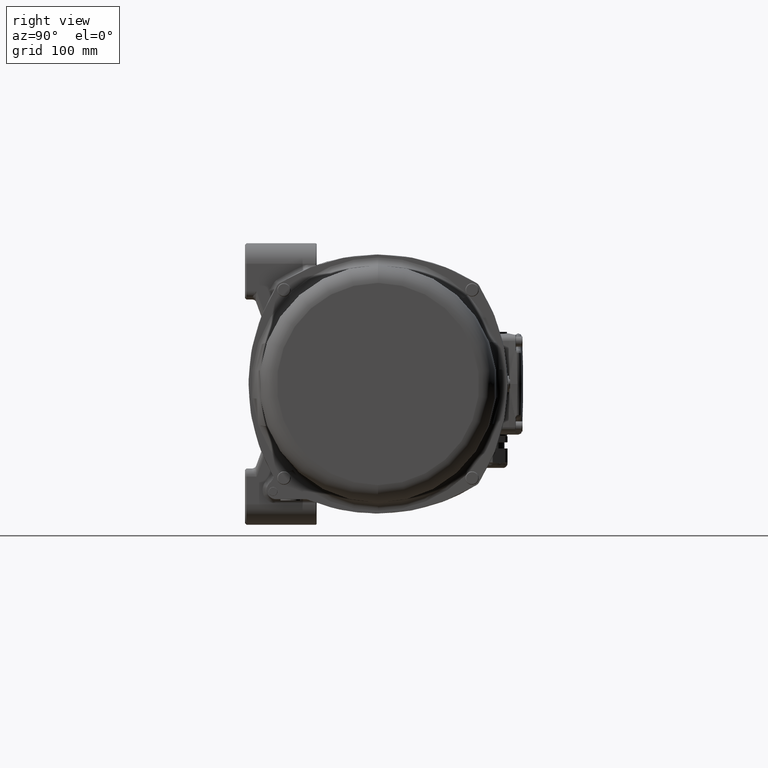
[diagram: clean part render]
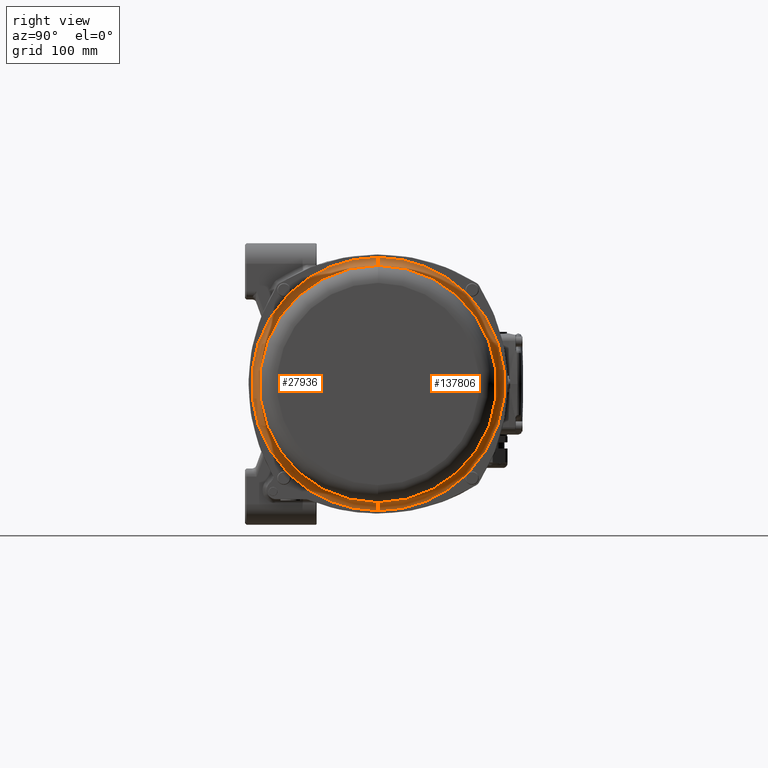
[diagram: same view with one multi-face feature highlighted, each face labeled with its STEP entity id]
A machine part, right view. The highlighted faces form ONE feature: a constant-radius fillet chain: 2 tangent blend faces with common blend radius 7.8 mm. The faces share edges in the B-rep.
Their STEP definitions:
[1] entity #27936 (Torus):
#785 = VERTEX_POINT ( 'NONE', #114153 ) ;
#1464 = CARTESIAN_POINT ( 'NONE',  ( 132.7040165105378500, -87.12431305550543900, 87.53068186414535000 ) ) ;
#7138 = CARTESIAN_POINT ( 'NONE',  ( 140.5000000000000000, 0.0000000000000000000, 123.7500000000000000 ) ) ;
#7971 = CARTESIAN_POINT ( 'NONE',  ( 132.7000000000000200, 0.0000000000000000000, 0.0000000000000000000 ) ) ;
#8385 = ORIENTED_EDGE ( 'NONE', *, *, #23820, .F. ) ;
#10545 = DIRECTION ( 'NONE',  ( 0.0000000000000000000, 0.0000000000000000000, 1.000000000000000000 ) ) ;
#11874 = CARTESIAN_POINT ( 'NONE',  ( 132.7000000000058200, -88.21192260523113800, 86.55527465691490400 ) ) ;
#13443 = CARTESIAN_POINT ( 'NONE',  ( 132.7000000000000200, -86.26410856214300800, -88.72748206697619400 ) ) ;
#14128 = EDGE_CURVE ( 'NONE', #119347, #125788, #133150, .T. ) ;
#16086 = CARTESIAN_POINT ( 'NONE',  ( 140.5000000000000000, 0.0000000000000000000, 115.9500000000000000 ) ) ;
#16488 = CARTESIAN_POINT ( 'NONE',  ( 132.7000000000000200, -86.26410856228450500, 88.72748206672559900 ) ) ;
#17228 = DIRECTION ( 'NONE',  ( 0.0000000000000000000, -1.224646799147352000E-016, 1.000000000000000000 ) ) ;
#17577 = EDGE_CURVE ( 'NONE', #785, #76790, #27568, .T. ) ;
#19471 = VERTEX_POINT ( 'NONE', #32546 ) ;
#20064 = CARTESIAN_POINT ( 'NONE',  ( 132.7000000000000200, 0.0000000000000000000, 0.0000000000000000000 ) ) ;
#23820 = EDGE_CURVE ( 'NONE', #62845, #19471, #139321, .T. ) ;
#24139 = AXIS2_PLACEMENT_3D ( 'NONE', #119004, #39434, #85669 ) ;
#24769 = CARTESIAN_POINT ( 'NONE',  ( 132.7012508799872400, -86.57178570248258600, 88.22362580652605900 ) ) ;
#27568 = CIRCLE ( 'NONE', #125929, 7.800000000000001600 ) ;
#27936 = ADVANCED_FACE ( 'NONE', ( #44255 ), #133332, .F. ) ;
#28338 = B_SPLINE_CURVE_WITH_KNOTS ( 'NONE', 3,
 ( #126256, #11874, #58100, #1464, #125276, #24769, #127238, #90983 ),
 .UNSPECIFIED., .F., .F.,
 ( 4, 2, 2, 4 ),
 ( 0.0000000000000000000, 0.001751077840620859400, 0.002626616760931303700, 0.003502155681241748200 ),
 .UNSPECIFIED. ) ;
#30046 = DIRECTION ( 'NONE',  ( 0.0000000000000000000, 0.0000000000000000000, 1.000000000000000000 ) ) ;
#31628 = EDGE_CURVE ( 'NONE', #92242, #76790, #35049, .T. ) ;
#32546 = CARTESIAN_POINT ( 'NONE',  ( 132.7000000000000200, -88.72748206697589500, 86.26410856214310700 ) ) ;
#33783 = CARTESIAN_POINT ( 'NONE',  ( 132.7040165105373400, -87.12431305525574000, -87.53068186441815600 ) ) ;
#35049 = CIRCLE ( 'NONE', #24139, 115.9500000000000000 ) ;
#39434 = DIRECTION ( 'NONE',  ( -1.000000000000000000, 0.0000000000000000000, 0.0000000000000000000 ) ) ;
#44255 = FACE_OUTER_BOUND ( 'NONE', #104617, .T. ) ;
#44300 = EDGE_CURVE ( 'NONE', #19471, #45499, #28338, .T. ) ;
#45499 = VERTEX_POINT ( 'NONE', #16488 ) ;
#46161 = CARTESIAN_POINT ( 'NONE',  ( 132.7000000000028900, -86.40969292785884200, -88.46970000177456900 ) ) ;
#49512 = CARTESIAN_POINT ( 'NONE',  ( 132.7000000000000200, -88.72748206672480400, -86.26410856228500300 ) ) ;
#50052 = DIRECTION ( 'NONE',  ( 0.0000000000000000000, 1.000000000000000000, 1.224646799147353200E-016 ) ) ;
#50242 = CIRCLE ( 'NONE', #90517, 123.7500000000000000 ) ;
#53741 = EDGE_CURVE ( 'NONE', #62845, #125788, #59409, .T. ) ;
#55214 = EDGE_CURVE ( 'NONE', #119347, #92242, #55337, .T. ) ;
#55337 = CIRCLE ( 'NONE', #107626, 7.800000000000001600 ) ;
#57526 = ORIENTED_EDGE ( 'NONE', *, *, #86124, .F. ) ;
#57646 = CARTESIAN_POINT ( 'NONE',  ( 132.7000000000000200, -88.72748206672480400, -86.26410856228500300 ) ) ;
#58100 = CARTESIAN_POINT ( 'NONE',  ( 132.7039890162016600, -87.74720360780899900, 86.90894322132595600 ) ) ;
#59409 = B_SPLINE_CURVE_WITH_KNOTS ( 'NONE', 3,
 ( #57646, #114321, #101931, #33783, #125310, #91501, #46161, #113337 ),
 .UNSPECIFIED., .F., .F.,
 ( 4, 2, 2, 4 ),
 ( 0.0000000000000000000, 0.001751077840620865400, 0.002626616760931298000, 0.003502155681241730800 ),
 .UNSPECIFIED. ) ;
#62321 = DIRECTION ( 'NONE',  ( 0.0000000000000000000, -1.000000000000000000, 0.0000000000000000000 ) ) ;
#62845 = VERTEX_POINT ( 'NONE', #49512 ) ;
#63606 = DIRECTION ( 'NONE',  ( 0.0000000000000000000, 0.0000000000000000000, 1.000000000000000000 ) ) ;
#65259 = CARTESIAN_POINT ( 'NONE',  ( 132.7000000000000200, 0.0000000000000000000, 0.0000000000000000000 ) ) ;
#69608 = ORIENTED_EDGE ( 'NONE', *, *, #44300, .F. ) ;
#71804 = ORIENTED_EDGE ( 'NONE', *, *, #31628, .T. ) ;
#72777 = DIRECTION ( 'NONE',  ( -1.000000000000000000, 0.0000000000000000000, 0.0000000000000000000 ) ) ;
#74952 = ORIENTED_EDGE ( 'NONE', *, *, #14128, .F. ) ;
#75570 = DIRECTION ( 'NONE',  ( -1.000000000000000000, 0.0000000000000000000, 0.0000000000000000000 ) ) ;
#76790 = VERTEX_POINT ( 'NONE', #16086 ) ;
#85395 = CARTESIAN_POINT ( 'NONE',  ( 140.5000000000000000, 1.515500413944849700E-014, -123.7500000000000000 ) ) ;
#85669 = DIRECTION ( 'NONE',  ( 0.0000000000000000000, 0.0000000000000000000, 1.000000000000000000 ) ) ;
#86124 = EDGE_CURVE ( 'NONE', #45499, #785, #50242, .T. ) ;
#86191 = DIRECTION ( 'NONE',  ( 0.0000000000000000000, 0.0000000000000000000, -1.000000000000000000 ) ) ;
#90517 = AXIS2_PLACEMENT_3D ( 'NONE', #65259, #133890, #10545 ) ;
#90983 = CARTESIAN_POINT ( 'NONE',  ( 132.7000000000000200, -86.26410856228450500, 88.72748206672559900 ) ) ;
#91501 = CARTESIAN_POINT ( 'NONE',  ( 132.7012508799858800, -86.57178570227223700, -88.22362580683028500 ) ) ;
#92005 = CARTESIAN_POINT ( 'NONE',  ( 140.5000000000000000, 1.467739188778103000E-014, -115.9500000000000000 ) ) ;
#92242 = VERTEX_POINT ( 'NONE', #92005 ) ;
#99726 = ORIENTED_EDGE ( 'NONE', *, *, #55214, .T. ) ;
#101931 = CARTESIAN_POINT ( 'NONE',  ( 132.7039890162028000, -87.74720360752391500, -86.90894322156334800 ) ) ;
#104617 = EDGE_LOOP ( 'NONE', ( #74952, #99726, #71804, #123550, #57526, #69608, #8385, #106737 ) ) ;
#106737 = ORIENTED_EDGE ( 'NONE', *, *, #53741, .T. ) ;
#107626 = AXIS2_PLACEMENT_3D ( 'NONE', #85395, #50052, #17228 ) ;
#111003 = DIRECTION ( 'NONE',  ( -1.000000000000000000, 0.0000000000000000000, 0.0000000000000000000 ) ) ;
#112477 = DIRECTION ( 'NONE',  ( 0.0000000000000000000, 0.0000000000000000000, 1.000000000000000000 ) ) ;
#113337 = CARTESIAN_POINT ( 'NONE',  ( 132.7000000000000200, -86.26410856214300800, -88.72748206697619400 ) ) ;
#114153 = CARTESIAN_POINT ( 'NONE',  ( 132.7000000000000200, 0.0000000000000000000, 123.7500000000000000 ) ) ;
#114321 = CARTESIAN_POINT ( 'NONE',  ( 132.7000000000079500, -88.21192260492595900, -86.55527465712585000 ) ) ;
#119004 = CARTESIAN_POINT ( 'NONE',  ( 140.5000000000000000, 0.0000000000000000000, 0.0000000000000000000 ) ) ;
#119347 = VERTEX_POINT ( 'NONE', #139068 ) ;
#123550 = ORIENTED_EDGE ( 'NONE', *, *, #17577, .F. ) ;
#125276 = CARTESIAN_POINT ( 'NONE',  ( 132.7032611614927800, -86.92852799385569500, 87.75455721908700500 ) ) ;
#125310 = CARTESIAN_POINT ( 'NONE',  ( 132.7032611614917000, -86.92852799361870100, -87.75455721937095200 ) ) ;
#125788 = VERTEX_POINT ( 'NONE', #13443 ) ;
#125929 = AXIS2_PLACEMENT_3D ( 'NONE', #7138, #62321, #86191 ) ;
#126256 = CARTESIAN_POINT ( 'NONE',  ( 132.7000000000000200, -88.72748206697589500, 86.26410856214310700 ) ) ;
#127238 = CARTESIAN_POINT ( 'NONE',  ( 132.7000000000039700, -86.40969292805520800, 88.46970000146114900 ) ) ;
#129580 = AXIS2_PLACEMENT_3D ( 'NONE', #140903, #72777, #112477 ) ;
#130216 = AXIS2_PLACEMENT_3D ( 'NONE', #20064, #111003, #30046 ) ;
#133150 = CIRCLE ( 'NONE', #130216, 123.7500000000000000 ) ;
#133332 = TOROIDAL_SURFACE ( 'NONE', #129580, 123.7500000000000000, 7.799999999999999800 ) ;
#133890 = DIRECTION ( 'NONE',  ( -1.000000000000000000, 0.0000000000000000000, 0.0000000000000000000 ) ) ;
#139068 = CARTESIAN_POINT ( 'NONE',  ( 132.7000000000000200, 1.515500413944849700E-014, -123.7500000000000000 ) ) ;
#139321 = CIRCLE ( 'NONE', #146366, 123.7500000000000000 ) ;
#140903 = CARTESIAN_POINT ( 'NONE',  ( 140.5000000000000000, 0.0000000000000000000, 0.0000000000000000000 ) ) ;
#146366 = AXIS2_PLACEMENT_3D ( 'NONE', #7971, #75570, #63606 ) ;
[2] entity #137806 (Torus):
#468 = CARTESIAN_POINT ( 'NONE',  ( 132.7040165105374600, 87.53068186434393300, -87.12431305532345500 ) ) ;
#785 = VERTEX_POINT ( 'NONE', #114153 ) ;
#818 = AXIS2_PLACEMENT_3D ( 'NONE', #98563, #76135, #8539 ) ;
#2311 = CARTESIAN_POINT ( 'NONE',  ( 132.7000000000000200, 0.0000000000000000000, 0.0000000000000000000 ) ) ;
#5866 = CARTESIAN_POINT ( 'NONE',  ( 132.7040165105374600, 87.12431305532300000, 87.53068186434435900 ) ) ;
#7138 = CARTESIAN_POINT ( 'NONE',  ( 140.5000000000000000, 0.0000000000000000000, 123.7500000000000000 ) ) ;
#7929 = EDGE_LOOP ( 'NONE', ( #107683, #63707, #42903, #37603, #77939, #14626, #33438, #55057 ) ) ;
#8539 = DIRECTION ( 'NONE',  ( 0.0000000000000000000, 0.0000000000000000000, 1.000000000000000000 ) ) ;
#10369 = CARTESIAN_POINT ( 'NONE',  ( 132.7000000000000200, 86.26410856222500500, -88.72748206683108700 ) ) ;
#11856 = CARTESIAN_POINT ( 'NONE',  ( 132.7000000000000200, 88.72748206677440000, -86.26410856225700700 ) ) ;
#14626 = ORIENTED_EDGE ( 'NONE', *, *, #111852, .F. ) ;
#16086 = CARTESIAN_POINT ( 'NONE',  ( 140.5000000000000000, 0.0000000000000000000, 115.9500000000000000 ) ) ;
#16873 = CARTESIAN_POINT ( 'NONE',  ( 132.7000000000000200, 88.72748206677440000, -86.26410856225700700 ) ) ;
#17228 = DIRECTION ( 'NONE',  ( 0.0000000000000000000, -1.224646799147352000E-016, 1.000000000000000000 ) ) ;
#17577 = EDGE_CURVE ( 'NONE', #785, #76790, #27568, .T. ) ;
#17881 = AXIS2_PLACEMENT_3D ( 'NONE', #91503, #101420, #136689 ) ;
#22321 = CARTESIAN_POINT ( 'NONE',  ( 132.7000000000072400, 86.55527465705917200, -88.21192260502145600 ) ) ;
#24727 = AXIS2_PLACEMENT_3D ( 'NONE', #2311, #138496, #81814 ) ;
#25578 = CARTESIAN_POINT ( 'NONE',  ( 132.7000000000000200, 88.72748206683199600, 86.26410856222450700 ) ) ;
#27568 = CIRCLE ( 'NONE', #125929, 7.800000000000001600 ) ;
#28098 = B_SPLINE_CURVE_WITH_KNOTS ( 'NONE', 3,
 ( #37200, #28185, #51045, #5866, #85397, #28688, #49091, #94882 ),
 .UNSPECIFIED., .F., .F.,
 ( 4, 2, 2, 4 ),
 ( 0.0000000000000000000, 0.001751077840641179700, 0.002626616760961755000, 0.003502155681282329900 ),
 .UNSPECIFIED. ) ;
#28185 = CARTESIAN_POINT ( 'NONE',  ( 132.7000000000072400, 88.21192260502215300, 86.55527465705866100 ) ) ;
#28688 = CARTESIAN_POINT ( 'NONE',  ( 132.7012508799862200, 86.57178570232315500, 88.22362580675636000 ) ) ;
#28770 = DIRECTION ( 'NONE',  ( -1.000000000000000000, 0.0000000000000000000, 0.0000000000000000000 ) ) ;
#29502 = CIRCLE ( 'NONE', #818, 123.7500000000000000 ) ;
#33438 = ORIENTED_EDGE ( 'NONE', *, *, #17577, .T. ) ;
#35530 = B_SPLINE_CURVE_WITH_KNOTS ( 'NONE', 3,
 ( #10369, #22321, #100866, #468, #124295, #79973, #67548, #11856 ),
 .UNSPECIFIED., .F., .F.,
 ( 4, 2, 2, 4 ),
 ( 0.0000000000000000000, 0.001751077840639430700, 0.002626616760959131200, 0.003502155681278831800 ),
 .UNSPECIFIED. ) ;
#37200 = CARTESIAN_POINT ( 'NONE',  ( 132.7000000000000200, 88.72748206683199600, 86.26410856222450700 ) ) ;
#37603 = ORIENTED_EDGE ( 'NONE', *, *, #133894, .F. ) ;
#42903 = ORIENTED_EDGE ( 'NONE', *, *, #79014, .T. ) ;
#49091 = CARTESIAN_POINT ( 'NONE',  ( 132.7000000000031200, 86.40969292790462900, 88.46970000170124100 ) ) ;
#50052 = DIRECTION ( 'NONE',  ( 0.0000000000000000000, 1.000000000000000000, 1.224646799147353200E-016 ) ) ;
#51045 = CARTESIAN_POINT ( 'NONE',  ( 132.7039890162025700, 87.74720360760854000, 86.90894322149209500 ) ) ;
#52197 = VERTEX_POINT ( 'NONE', #141199 ) ;
#55057 = ORIENTED_EDGE ( 'NONE', *, *, #134390, .T. ) ;
#55214 = EDGE_CURVE ( 'NONE', #119347, #92242, #55337, .T. ) ;
#55337 = CIRCLE ( 'NONE', #107626, 7.800000000000001600 ) ;
#56224 = VERTEX_POINT ( 'NONE', #114885 ) ;
#61133 = VERTEX_POINT ( 'NONE', #25578 ) ;
#62321 = DIRECTION ( 'NONE',  ( 0.0000000000000000000, -1.000000000000000000, 0.0000000000000000000 ) ) ;
#63468 = CIRCLE ( 'NONE', #24727, 123.7500000000000000 ) ;
#63707 = ORIENTED_EDGE ( 'NONE', *, *, #63858, .F. ) ;
#63858 = EDGE_CURVE ( 'NONE', #52197, #119347, #66818, .T. ) ;
#66818 = CIRCLE ( 'NONE', #17881, 123.7500000000000000 ) ;
#67548 = CARTESIAN_POINT ( 'NONE',  ( 132.7000000000031200, 88.46970000169973500, -86.40969292790553900 ) ) ;
#76135 = DIRECTION ( 'NONE',  ( -1.000000000000000000, 0.0000000000000000000, 0.0000000000000000000 ) ) ;
#76790 = VERTEX_POINT ( 'NONE', #16086 ) ;
#77939 = ORIENTED_EDGE ( 'NONE', *, *, #84281, .T. ) ;
#79014 = EDGE_CURVE ( 'NONE', #52197, #82189, #35530, .T. ) ;
#79973 = CARTESIAN_POINT ( 'NONE',  ( 132.7012508799862200, 88.22362580675513800, -86.57178570232402100 ) ) ;
#81814 = DIRECTION ( 'NONE',  ( 0.0000000000000000000, 0.0000000000000000000, 1.000000000000000000 ) ) ;
#82189 = VERTEX_POINT ( 'NONE', #16873 ) ;
#84281 = EDGE_CURVE ( 'NONE', #61133, #56224, #28098, .T. ) ;
#85395 = CARTESIAN_POINT ( 'NONE',  ( 140.5000000000000000, 1.515500413944849700E-014, -123.7500000000000000 ) ) ;
#85397 = CARTESIAN_POINT ( 'NONE',  ( 132.7032611614919500, 86.92852799368033300, 87.75455721929684200 ) ) ;
#86191 = DIRECTION ( 'NONE',  ( 0.0000000000000000000, 0.0000000000000000000, -1.000000000000000000 ) ) ;
#87532 = CARTESIAN_POINT ( 'NONE',  ( 140.5000000000000000, 0.0000000000000000000, 0.0000000000000000000 ) ) ;
#91503 = CARTESIAN_POINT ( 'NONE',  ( 132.7000000000000200, 0.0000000000000000000, 0.0000000000000000000 ) ) ;
#92005 = CARTESIAN_POINT ( 'NONE',  ( 140.5000000000000000, 1.467739188778103000E-014, -115.9500000000000000 ) ) ;
#92242 = VERTEX_POINT ( 'NONE', #92005 ) ;
#93024 = FACE_OUTER_BOUND ( 'NONE', #7929, .T. ) ;
#93575 = CIRCLE ( 'NONE', #145613, 115.9500000000000000 ) ;
#94882 = CARTESIAN_POINT ( 'NONE',  ( 132.7000000000000200, 86.26410856225689400, 88.72748206677459800 ) ) ;
#97570 = AXIS2_PLACEMENT_3D ( 'NONE', #87532, #120851, #144211 ) ;
#98563 = CARTESIAN_POINT ( 'NONE',  ( 132.7000000000000200, 0.0000000000000000000, 0.0000000000000000000 ) ) ;
#100866 = CARTESIAN_POINT ( 'NONE',  ( 132.7039890162025700, 86.90894322149230800, -87.74720360760835500 ) ) ;
#101420 = DIRECTION ( 'NONE',  ( -1.000000000000000000, 0.0000000000000000000, 0.0000000000000000000 ) ) ;
#107626 = AXIS2_PLACEMENT_3D ( 'NONE', #85395, #50052, #17228 ) ;
#107683 = ORIENTED_EDGE ( 'NONE', *, *, #55214, .F. ) ;
#111852 = EDGE_CURVE ( 'NONE', #785, #56224, #63468, .T. ) ;
#114153 = CARTESIAN_POINT ( 'NONE',  ( 132.7000000000000200, 0.0000000000000000000, 123.7500000000000000 ) ) ;
#114885 = CARTESIAN_POINT ( 'NONE',  ( 132.7000000000000200, 86.26410856225689400, 88.72748206677459800 ) ) ;
#119347 = VERTEX_POINT ( 'NONE', #139068 ) ;
#119712 = TOROIDAL_SURFACE ( 'NONE', #97570, 123.7500000000000000, 7.799999999999999800 ) ;
#120851 = DIRECTION ( 'NONE',  ( -1.000000000000000000, 0.0000000000000000000, 0.0000000000000000000 ) ) ;
#124295 = CARTESIAN_POINT ( 'NONE',  ( 132.7032611614919500, 87.75455721929613200, -86.92852799368091600 ) ) ;
#125929 = AXIS2_PLACEMENT_3D ( 'NONE', #7138, #62321, #86191 ) ;
#133894 = EDGE_CURVE ( 'NONE', #61133, #82189, #29502, .T. ) ;
#134390 = EDGE_CURVE ( 'NONE', #76790, #92242, #93575, .T. ) ;
#136689 = DIRECTION ( 'NONE',  ( 0.0000000000000000000, 0.0000000000000000000, 1.000000000000000000 ) ) ;
#137806 = ADVANCED_FACE ( 'NONE', ( #93024 ), #119712, .F. ) ;
#138496 = DIRECTION ( 'NONE',  ( -1.000000000000000000, 0.0000000000000000000, 0.0000000000000000000 ) ) ;
#139068 = CARTESIAN_POINT ( 'NONE',  ( 132.7000000000000200, 1.515500413944849700E-014, -123.7500000000000000 ) ) ;
#141199 = CARTESIAN_POINT ( 'NONE',  ( 132.7000000000000200, 86.26410856222500500, -88.72748206683108700 ) ) ;
#141684 = DIRECTION ( 'NONE',  ( 0.0000000000000000000, 0.0000000000000000000, 1.000000000000000000 ) ) ;
#142685 = CARTESIAN_POINT ( 'NONE',  ( 140.5000000000000000, 0.0000000000000000000, 0.0000000000000000000 ) ) ;
#144211 = DIRECTION ( 'NONE',  ( 0.0000000000000000000, 0.0000000000000000000, 1.000000000000000000 ) ) ;
#145613 = AXIS2_PLACEMENT_3D ( 'NONE', #142685, #28770, #141684 ) ;